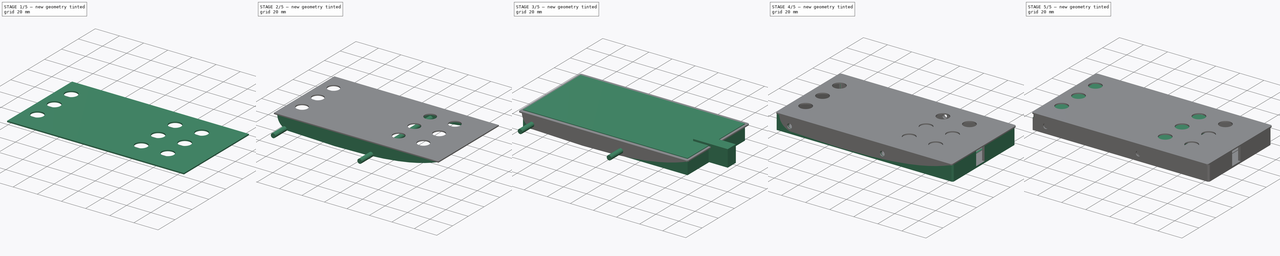
[diagram: build sequence overview — one tinted view per stage of 5, left to right]
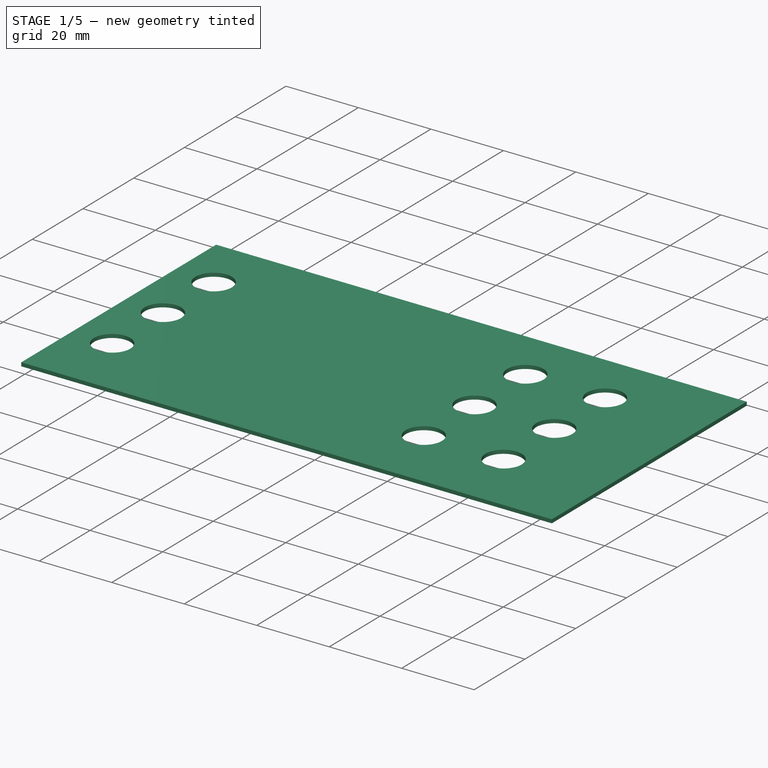
[diagram: stage 1 of 5 — iso view after this stage's code; geometry added in this stage tinted green]
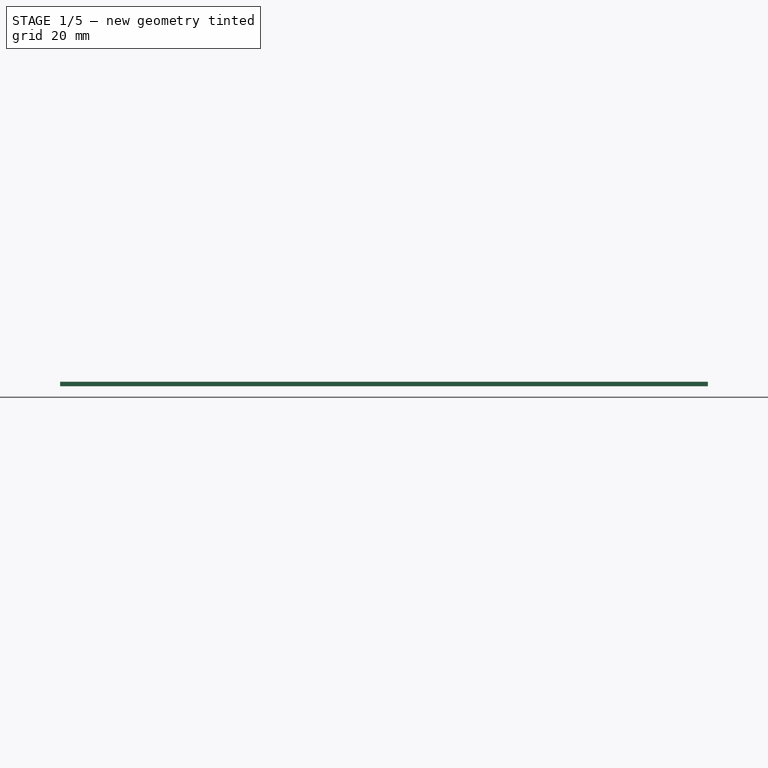
[diagram: stage 1 of 5 — front view after this stage's code; geometry added in this stage tinted green]
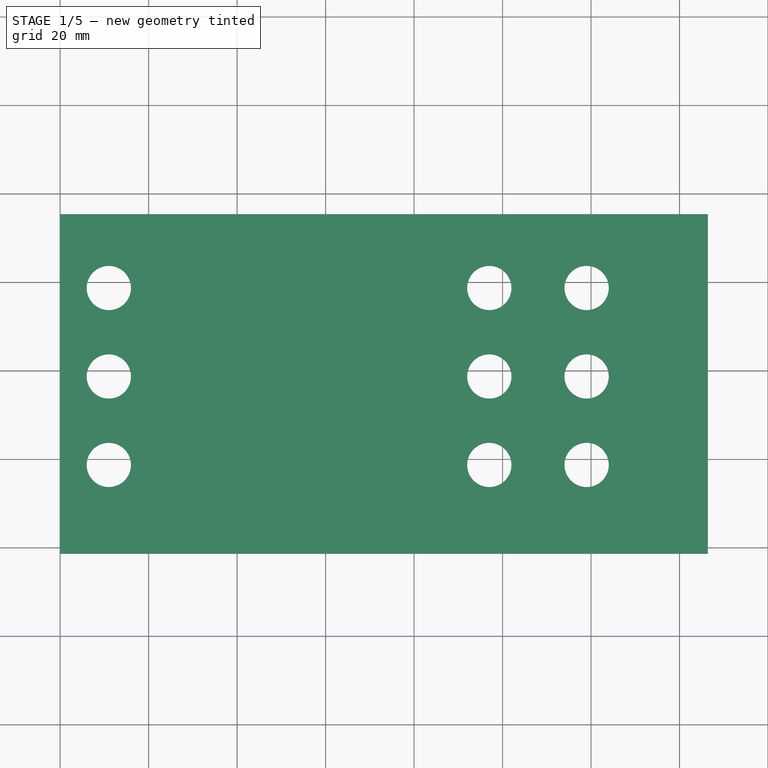
[diagram: stage 1 of 5 — top view after this stage's code; geometry added in this stage tinted green]
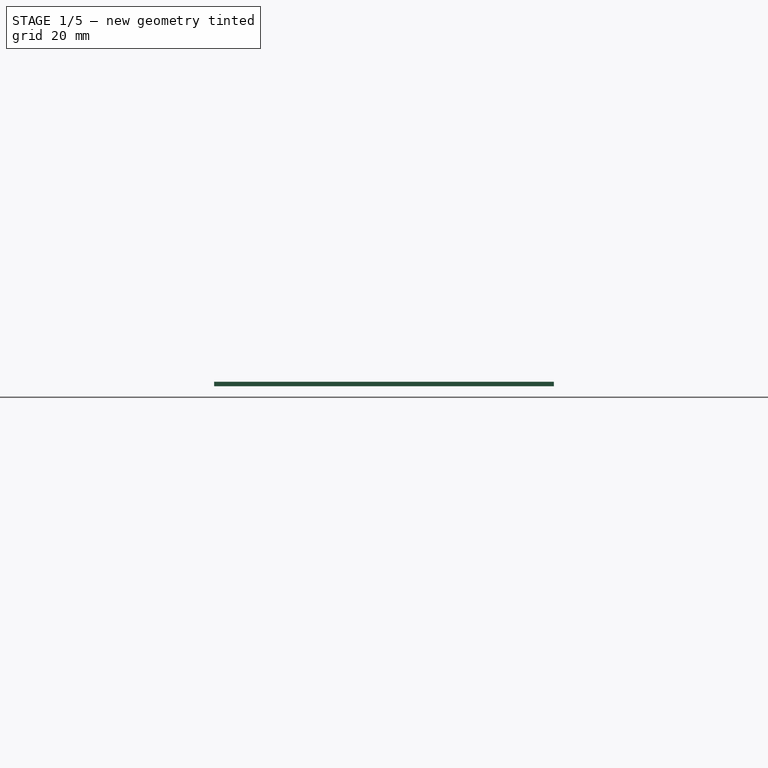
[diagram: stage 1 of 5 — right view after this stage's code; geometry added in this stage tinted green]
FCSTD DOCUMENT  (FreeCAD 0.18.4R)
Label: hdd2.5case_v
License: All rights reserved
LicenseURL: http://en.wikipedia.org/wiki/All_rights_reserved
objects: Part::Box×11, Part::FeaturePython×6, Part::Cut×5, PartDesign::Body×5, App::Part×4, PartDesign::FeatureBase×4, Part::MultiFuse×4, Part::Cylinder×2, Part::Fillet×2, Part::Compound×2, Spreadsheet::Sheet×1, Sketcher::SketchObject×1, PartDesign::Pad×1
note: 44 computed .brp shape members not serialized (recipe doc carries the construction recipe); baked Part::Feature solids carry a one-line shape summary decoded from their .brp

FEATURE [App::Part] Part  label="bottom part"
  Group = -> [Box,Box001,Cut,Box003,Array,Array001,Box006,Cut002,Body,Fusion,Box009,Box010,Fillet,Compound]
  Origin = -> Origin
FEATURE [Part::Box] Box011  label="Cube008"
  AttacherType = Attacher::AttachEngine3D
  Height = 1
  Length = 146.4
  Placement = pos=(0,-1.4,12.8) rot=(0,0,1;0rad)
  Width = 76.8
  expr: Placement.Base.y = -p.top_side_wall - p.wall_gap
  expr: Length = p.internal_length + 2 * p.x_wall + p.wall_gap
  expr: Width = p.internal_width + 2 * p.wall + 4 * p.wall_gap + 2 * p.top_side_wall
  expr: Placement.Base.z = p.internal_height + p.bottom_wall + 2 * p.wall_gap
  expr: Height = p.top_wall
FEATURE [Part::Cylinder] Cylinder001
  Angle = 360
  AttacherType = Attacher::AttachEngine3D
  Height = 10
  Placement = pos=(11,18.7,10) rot=(0,0,1;0rad)
  Radius = 5
FEATURE [Part::FeaturePython] Array005  label="vent hole array"  # Draft array (typed FeaturePython)
  Angle = 360
  ArrayType = 0
  Axis = (0,0,1)
  Base = -> Cylinder001
  Center = (0,0,0)
  Fuse = false
  IntervalAxis = (0,0,0)
  IntervalX = (1,0,0)
  IntervalY = (0,20,0)
  IntervalZ = (0,0,1)
  NumberPolar = 1
  NumberX = 1
  NumberY = 3
  NumberZ = 1
FEATURE [PartDesign::FeatureBase] Clone002
  BaseFeature = -> Array005
FEATURE [PartDesign::Body] Body003  label="vent hole array clone"
  BaseFeature = -> Array005
  Group = -> [Clone002]
  Origin = -> Origin007
  Placement = pos=(86,0,0) rot=(0,0,1;0rad)
  Tip = -> Clone002
FEATURE [PartDesign::FeatureBase] Clone003
  BaseFeature = -> Array005
FEATURE [PartDesign::Body] Body004  label="vent hole array clone001"
  BaseFeature = -> Array005
  Group = -> [Clone003]
  Origin = -> Origin008
  Placement = pos=(108,0,0) rot=(0,0,1;0rad)
  Tip = -> Clone003
FEATURE [Part::MultiFuse] Fusion003  label="vent hole fusion"
  Shapes = -> [Array005,Body003,Body004]
FEATURE [Part::Cut] Cut005  label="top with holes cut"
  Base = -> Box011
  Tool = -> Fusion003
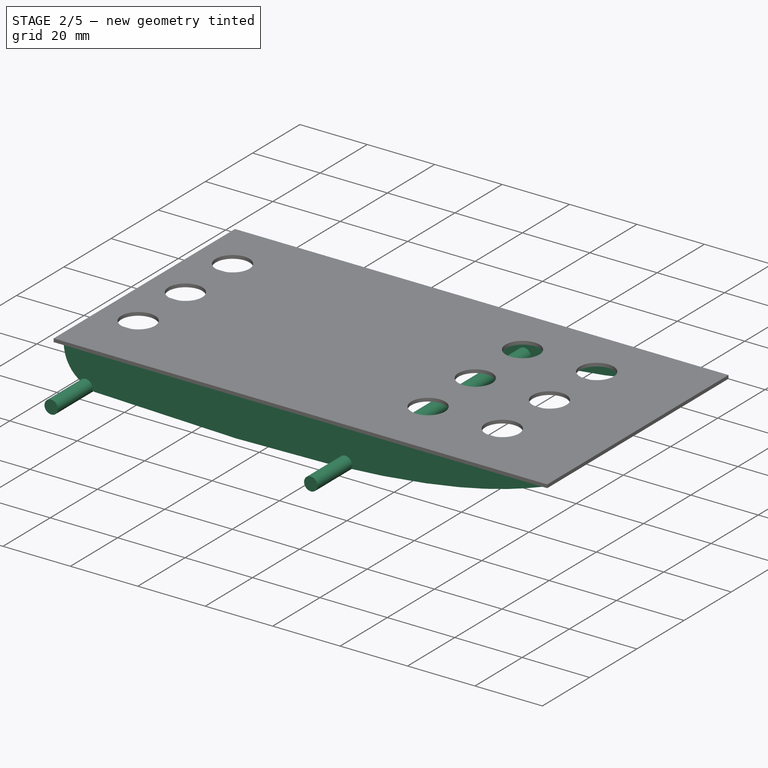
[diagram: stage 2 of 5 — iso view after this stage's code; geometry added in this stage tinted green]
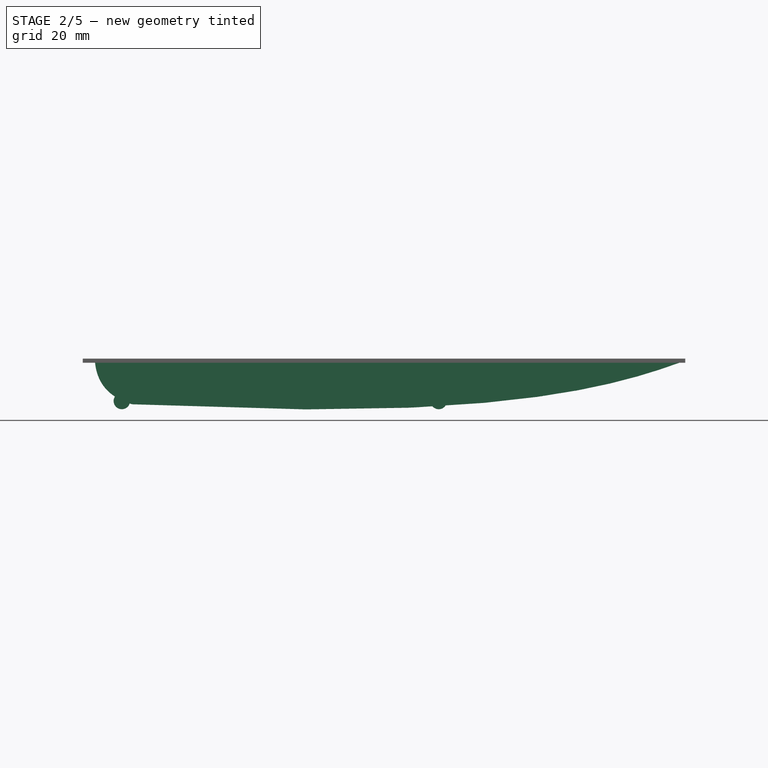
[diagram: stage 2 of 5 — front view after this stage's code; geometry added in this stage tinted green]
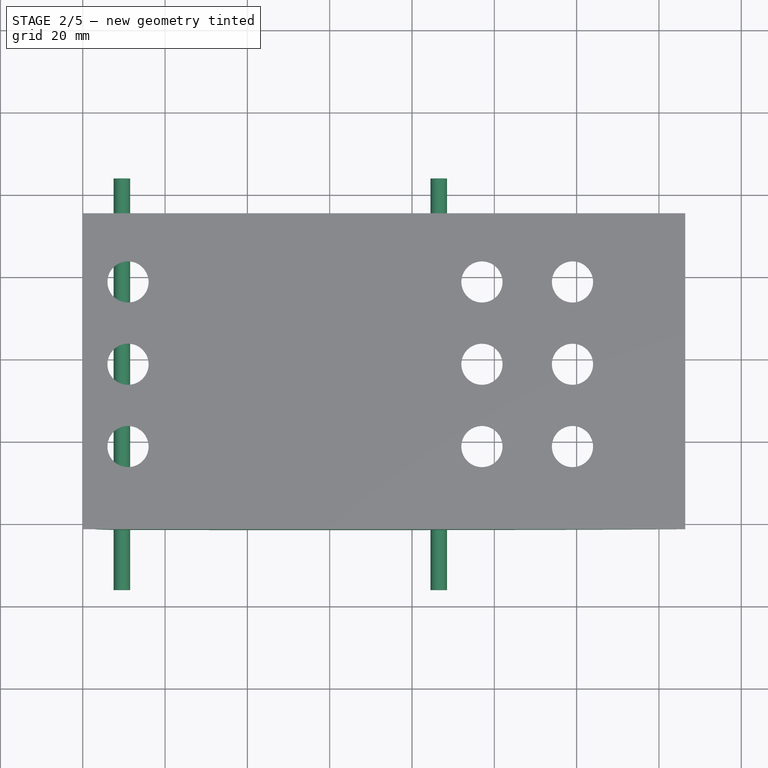
[diagram: stage 2 of 5 — top view after this stage's code; geometry added in this stage tinted green]
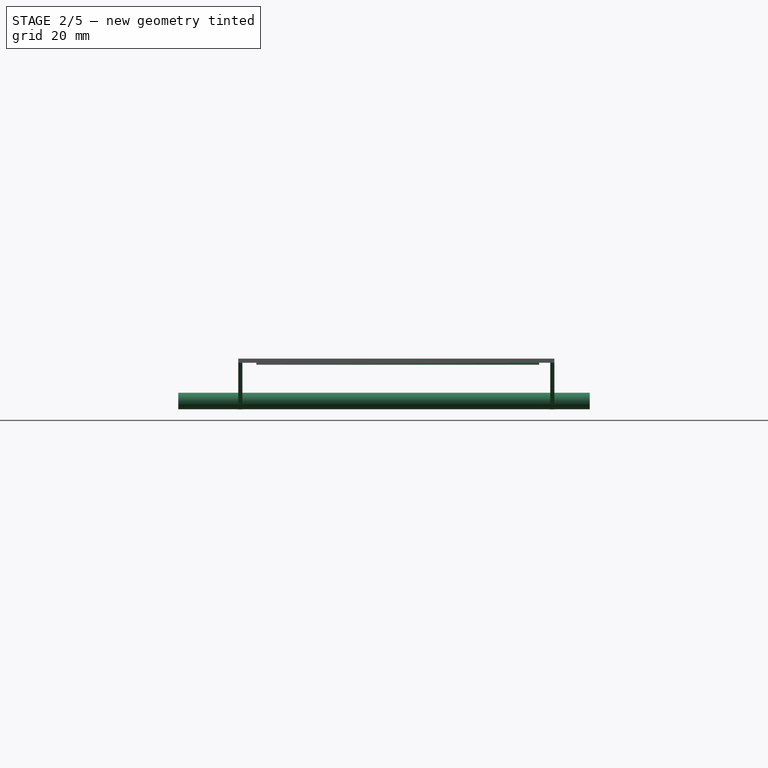
[diagram: stage 2 of 5 — right view after this stage's code; geometry added in this stage tinted green]
FEATURE [Part::Cylinder] Cylinder
  Angle = 360
  AttacherType = Attacher::AttachEngine3D
  Height = 100
  Placement = pos=(9.5,-16,3.5) rot=(-1,0,0;1.5708rad)
  Radius = 2
FEATURE [Part::FeaturePython] Array002  label="hdd side hole array"  # Draft array (typed FeaturePython)
  Angle = 360
  ArrayType = 0
  Axis = (0,0,1)
  Base = -> Cylinder
  Center = (0,0,0)
  Fuse = false
  IntervalAxis = (0,0,0)
  IntervalX = (77,0,0)
  IntervalY = (0,1,0)
  IntervalZ = (0,0,1)
  NumberPolar = 1
  NumberX = 2
  NumberY = 1
  NumberZ = 1
FEATURE [Sketcher::SketchObject] Sketch
  MapMode = 5
  Placement = pos=(0,0,0) rot=(1,0,0;1.5708rad)
  Support = -> [XZ_Plane005]
  expr: Constraints[13] = p.internal_height + 2 * p.wall_gap + p.bottom_wall
  expr: Constraints[12] = p.internal_length
  sketch-geometry (13):
    g0: Circle [constr] CenterX=3 CenterY=12.8 CenterZ=0 NormalX=0 NormalY=0 NormalZ=1 AngleXU=0 Radius=2
    g1: Circle [constr] CenterX=3.76168 CenterY=5.10635 CenterZ=0 NormalX=0 NormalY=0 NormalZ=1 AngleXU=0 Radius=2
    g2: Circle [constr] CenterX=12.0346 CenterY=2.69761 CenterZ=0 NormalX=0 NormalY=0 NormalZ=1 AngleXU=0 Radius=2
    g3: BSplineCurve PolesCount=3 KnotsCount=2 Degree=2 IsPeriodic=0
    g4: GeomPoint [constr] X=0 Y=17 Z=0
    g5: Circle [constr] CenterX=11.504 CenterY=2.92591 CenterZ=0 NormalX=0 NormalY=0 NormalZ=1 AngleXU=0 Radius=10
    g6: Circle [constr] CenterX=95.8102 CenterY=-0.187429 CenterZ=0 NormalX=0 NormalY=0 NormalZ=1 AngleXU=0 Radius=10
    g7: Circle [constr] CenterX=126.452 CenterY=3.82053 CenterZ=0 NormalX=0 NormalY=0 NormalZ=1 AngleXU=0 Radius=8.97947
    g8: Circle [constr] CenterX=147.683 CenterY=13.9742 CenterZ=0 NormalX=0 NormalY=0 NormalZ=1 AngleXU=0 Radius=10
    g9: BSplineCurve PolesCount=4 KnotsCount=2 Degree=3 IsPeriodic=0
    g10: GeomPoint [constr] X=11.504 Y=2.92591 Z=0
    g11: GeomPoint [constr] X=146.599 Y=17 Z=0
    g12: LineSegment StartX=145 StartY=12.8 StartZ=0 EndX=3 EndY=12.8 EndZ=0
  constraints (14):
    c: Radius(g0) = 2
    c: Equal(g0,g1)
    c: Equal(g0,g2)
    c: InternalAlignment(g0,g3)
    c: InternalAlignment(g1,g3)
    c: InternalAlignment(g2,g3)
    c: Tangent(g12,g7)
    c: Coincident(g9,g3)
    c: Coincident(g12,g3)
    c: Coincident(g9,g12)
    c: Horizontal(g12)
    c: DistanceX(g-1,g3) = 3
    c: DistanceX(g3,g9) = 142
    c: DistanceY(g-1,g3) = 12.8
FEATURE [PartDesign::Pad] Pad
  Length = 1
  Length2 = 100
  Placement = pos=(0,0,0) rot=(1,0,0;1.5708rad)
  Profile = -> Sketch
  Type = 0
  expr: Length = p.top_side_wall
FEATURE [PartDesign::Body] Body001  label="top side wall body"
  Group = -> [Sketch,Pad]
  Origin = -> Origin005
  Placement = pos=(0,-0.4,0) rot=(0,0,1;0rad)
  Tip = -> Pad
  expr: Placement.Base.y = -p.wall_gap
FEATURE [Part::FeaturePython] Array003  label="top side wall array"  # Draft array (typed FeaturePython)
  Angle = 360
  ArrayType = 0
  Axis = (0,0,1)
  Base = -> Body001
  Center = (0,0,0)
  Fuse = false
  IntervalAxis = (0,0,0)
  IntervalX = (1,0,0)
  IntervalY = (0,75.8,0)
  IntervalZ = (0,0,1)
  NumberPolar = 1
  NumberX = 1
  NumberY = 2
  NumberZ = 1
  expr: IntervalY.y = p.internal_width + 2 * p.wall + 4 * p.wall_gap + p.top_side_wall
FEATURE [PartDesign::FeatureBase] Clone001
  BaseFeature = -> Array002
FEATURE [Part::Box] Box012  label="top bone"
  AttacherType = Attacher::AttachEngine3D
  Height = 0.7
  Length = 1.5
  Placement = pos=(0,3,12.3) rot=(0,0,1;0rad)
  Width = 68.7
  expr: Placement.Base.y = 2 * p.wall
  expr: Placement.Base.z = p.bottom_wall + p.hdd_height + p.usb_low + 2 * p.wall_gap
  expr: Height = p.top_wall + p.internal_height - p.hdd_height - 2 * p.wall_gap - p.usb_low
  expr: Width = p.internal_width - p.wall
  expr: Length = p.wall
FEATURE [Part::FeaturePython] Array004  label="y_top_bones array"  # Draft array (typed FeaturePython)
  Angle = 360
  ArrayType = 0
  Axis = (0,0,1)
  Base = -> Box012
  Center = (0,0,0)
  Fuse = false
  IntervalAxis = (0,0,0)
  IntervalX = (30,0,0)
  IntervalY = (0,1,0)
  IntervalZ = (0,0,1)
  NumberPolar = 1
  NumberX = 5
  NumberY = 1
  NumberZ = 1
  Placement = pos=(20,0,0) rot=(0,0,1;0rad)
FEATURE [Part::MultiFuse] Fusion002
  Shapes = -> [Array004,Cut005]
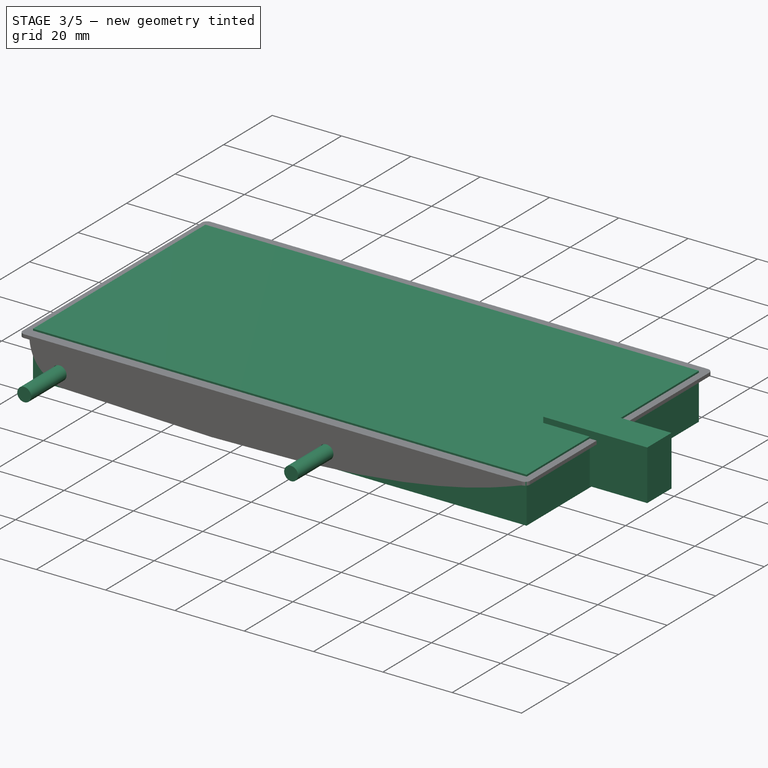
[diagram: stage 3 of 5 — iso view after this stage's code; geometry added in this stage tinted green]
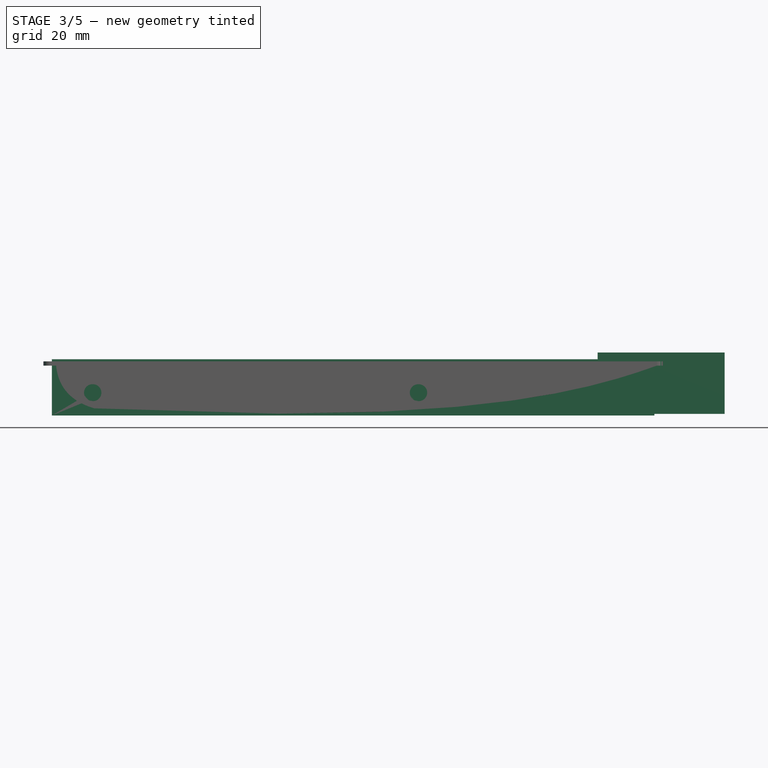
[diagram: stage 3 of 5 — front view after this stage's code; geometry added in this stage tinted green]
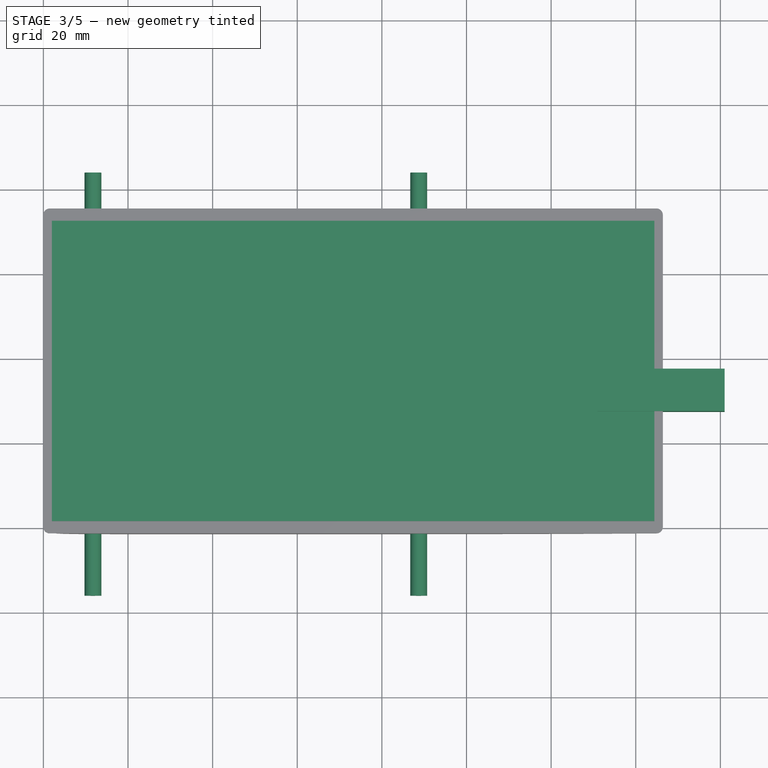
[diagram: stage 3 of 5 — top view after this stage's code; geometry added in this stage tinted green]
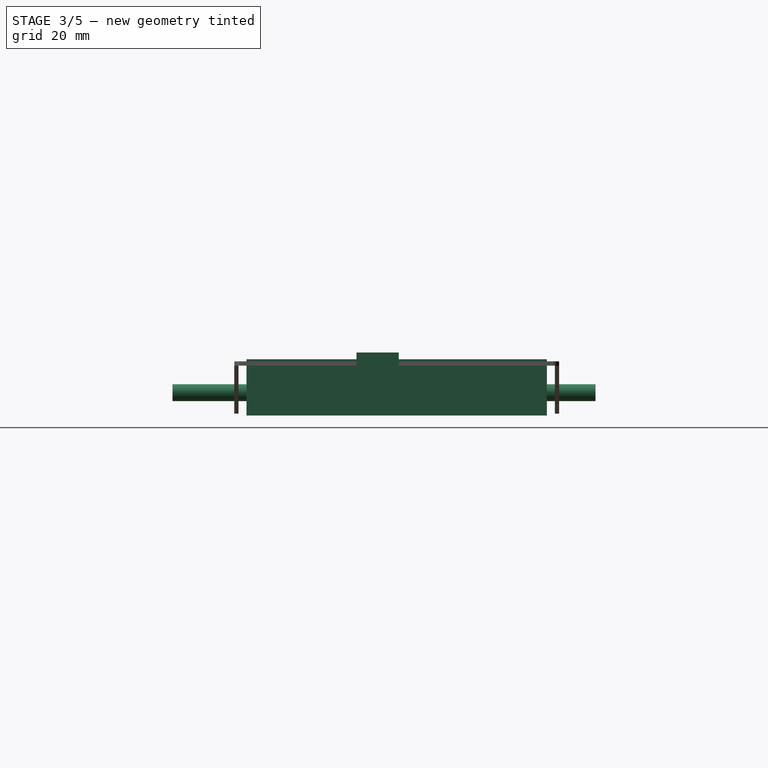
[diagram: stage 3 of 5 — right view after this stage's code; geometry added in this stage tinted green]
FEATURE [Spreadsheet::Sheet] Spreadsheet  label="p"
  cells = A1=hdd_length; B1(hdd_length)=100; A2=hdd_width; B2(hdd_width)=70.2; A3=x_wall; B3(x_wall)=2; A4=wall; B4(wall)=1.5; A5=bottom_wall; B5(bottom_wall)=1; A6=top_wall; B6(top_wall)==bottom_wall; A7=internal_length; B7(internal_length)==p.hdd_length + 42; A8=internal_width; B8(internal_width)==p.hdd_width; A9=hdd_height; B9(hdd_height)=9; A10=wall_gap; B10(wall_gap)=0.4; A11=vert_hole_dist; B11(vert_hole_dist)=3; A12=usb_low; B12(usb_low)=1.5; A13=usb_height; B13(usb_height)=9.5; A14=usb_length; B14(usb_length)=42; A15=usb_width; B15(usb_width)=52; A16=usb_hole_offset; B16(usb_hole_offset)=6; A17=usb_hole_width; B17(usb_hole_width)=10; A18=internal_height; B18(internal_height)=11; A19=top_side_wall; B19(top_side_wall)=1
FEATURE [Part::Box] Box001  label="Cube001"
  AttacherType = Attacher::AttachEngine3D
  Height = 13.3
  Length = 142.4
  Placement = pos=(2,1.5,1) rot=(0,0,1;0rad)
  Width = 71
  expr: Placement.Base.y = p.wall
  expr: Placement.Base.x = p.x_wall
  expr: Length = p.internal_length + p.wall_gap
  expr: Width = p.internal_width + 2 * p.wall_gap
  expr: Placement.Base.z = p.bottom_wall
  expr: Height = p.internal_height + p.wall + 2 * p.wall_gap
FEATURE [App::Part] Part001  label="hdd mockup part"
  Group = -> [Box004,Cylinder,Array002,Cut003]
  Origin = -> Origin001
  Placement = pos=(2.4,1.9,2.9) rot=(0,0,1;0rad)
  expr: Placement.Base.z = p.bottom_wall + p.wall_gap + p.usb_low
  expr: Placement.Base.y = p.wall + p.wall_gap
  expr: Placement.Base.x = p.x_wall + p.wall_gap
FEATURE [PartDesign::FeatureBase] Clone
  BaseFeature = -> Array002
FEATURE [App::Part] Part002  label="usb mockup part"
  Group = -> [Box007,Box008,Fusion001]
  Origin = -> Origin003
  Placement = pos=(103,6.4,1.4) rot=(0,0,1;0rad)
  expr: Placement.Base.y = p.wall + p.wall_gap + 4.5
  expr: Placement.Base.z = p.bottom_wall + p.wall_gap
FEATURE [Part::Box] Box009  label="usb extent hole"
  AttacherType = Attacher::AttachEngine3D
  Height = 14.5
  Length = 30
  Placement = pos=(131,27.5,1.4) rot=(0,0,1;0rad)
  Width = 10
  expr: Placement.Base.z = p.bottom_wall + p.wall_gap
  expr: Height = p.usb_height + 5
  expr: Width = p.usb_hole_width
FEATURE [Part::MultiFuse] Fusion  label="bottom body hole fusion"
  Shapes = -> [Box001,Body,Box009]
FEATURE [PartDesign::Body] Body002  label="hdd holes clone"
  BaseFeature = -> Array002
  Group = -> [Clone001]
  Origin = -> Origin006
  Placement = pos=(2.1,0,2.9) rot=(0,0,1;0rad)
  Tip = -> Clone001
  expr: Placement.Base.z = p.bottom_wall + p.wall_gap + 1.5
FEATURE [Part::Cut] Cut004  label="top side wall cut"
  Base = -> Array003
  Tool = -> Body002
FEATURE [Part::Compound] Compound001
  Links = -> [Cut004,Fusion002]
FEATURE [Part::Fillet] Fillet001  label="top part fillet"
  Base = -> Compound001
  Edges = 4 edges r=1.5: [Edge72,Edge74,Edge75,Edge77]
FEATURE [App::Part] Part003  label="top part"
  Group = -> [Box011,Body001,Array003,Body002,Cut004,Compound001,Fillet001,Box012,Array004,Fusion002,Cylinder001,Array005,Body003,Body004,Fusion003,Cut005]
  Origin = -> Origin004
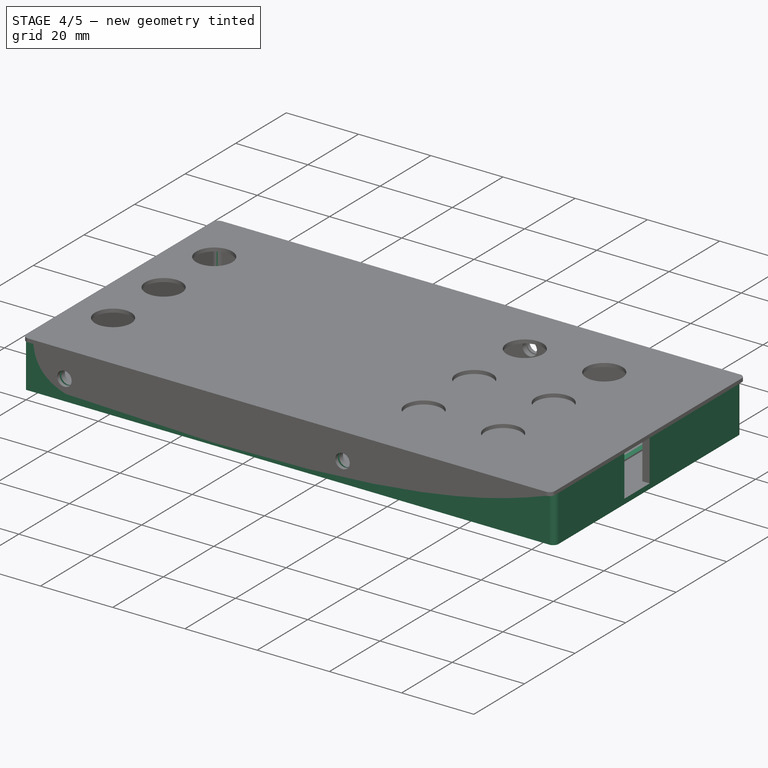
[diagram: stage 4 of 5 — iso view after this stage's code; geometry added in this stage tinted green]
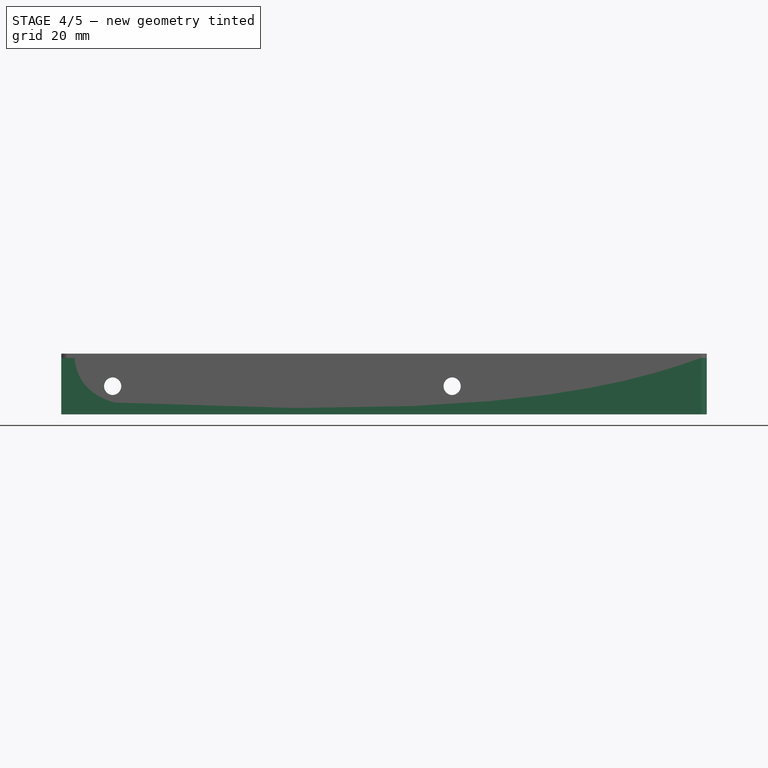
[diagram: stage 4 of 5 — front view after this stage's code; geometry added in this stage tinted green]
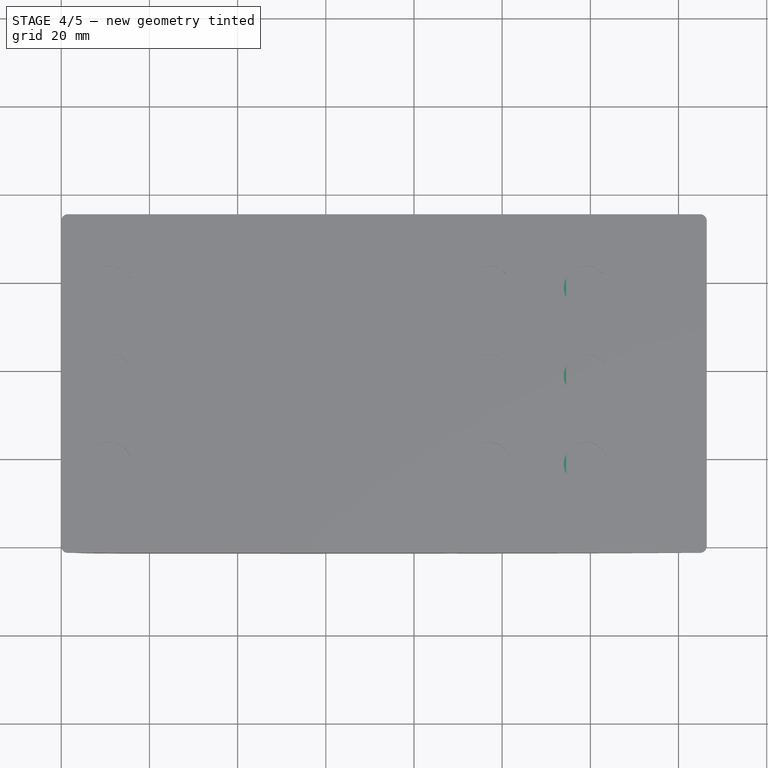
[diagram: stage 4 of 5 — top view after this stage's code; geometry added in this stage tinted green]
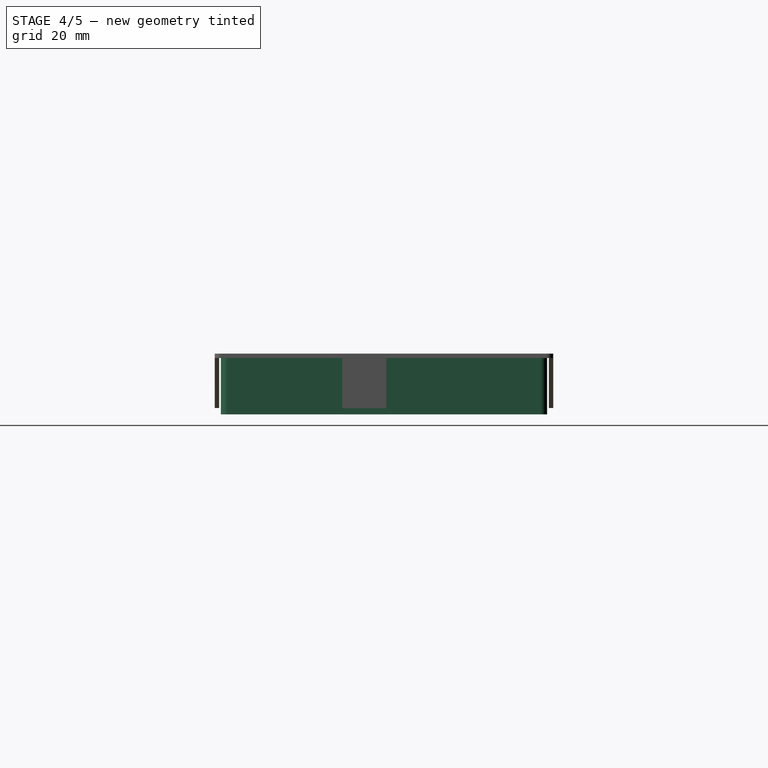
[diagram: stage 4 of 5 — right view after this stage's code; geometry added in this stage tinted green]
FEATURE [Part::Box] Box  label="Cube"
  AttacherType = Attacher::AttachEngine3D
  Height = 12.8
  Length = 146.4
  Width = 74
  expr: Length = p.internal_length + 2 * p.x_wall + p.wall_gap
  expr: Width = p.internal_width + 2 * p.wall + 2 * p.wall_gap
  expr: Height = p.internal_height + p.bottom_wall + 2 * p.wall_gap
FEATURE [Part::Box] Box003  label="Cube003"
  AttacherType = Attacher::AttachEngine3D
  Height = 12.8
  Length = 1.5
  Width = 74
  expr: Length = p.wall
  expr: Width = p.internal_width + 2 * p.wall + 2 * p.wall_gap
  expr: Height = p.internal_height + p.bottom_wall + 2 * p.wall_gap
FEATURE [Part::Box] Box006  label="Cube005"
  AttacherType = Attacher::AttachEngine3D
  Height = 12.8
  Length = 1.5
  Placement = pos=(0,1.9,2.9) rot=(0,0,1;0rad)
  Width = 70.2
  expr: Placement.Base.y = p.wall + p.wall_gap
  expr: Length = p.wall
  expr: Width = p.internal_width
  expr: Placement.Base.z = p.bottom_wall + p.wall_gap + p.usb_low
  expr: Height = p.internal_height + p.bottom_wall + 2 * p.wall_gap
FEATURE [Part::Cut] Cut002
  Base = -> Box003
  Tool = -> Box006
FEATURE [Part::Cut] Cut  label="outer body cut"
  Base = -> Box
  Tool = -> Fusion
FEATURE [Part::Box] Box010  label="Cube007"
  AttacherType = Attacher::AttachEngine3D
  Height = 1.4
  Length = 1.5
  Width = 74
  expr: Length = p.wall
  expr: Width = p.internal_width + 2 * p.wall + 2 * p.wall_gap
  expr: Height = p.bottom_wall + p.wall_gap
FEATURE [Part::FeaturePython] Array001  label="y_usb_bones array"  # Draft array (typed FeaturePython)
  Angle = 360
  ArrayType = 0
  Axis = (0,0,1)
  Base = -> Box010
  Center = (0,0,0)
  Fuse = false
  IntervalAxis = (0,0,0)
  IntervalX = (20,0,0)
  IntervalY = (0,1,0)
  IntervalZ = (0,0,1)
  NumberPolar = 1
  NumberX = 2
  NumberY = 1
  NumberZ = 1
  Placement = pos=(113,0,0) rot=(0,0,1;0rad)
FEATURE [Part::Fillet] Fillet  label="bottom fillet"
  Base = -> Cut
  Edges = 8 edges r=1.5: [Edge1,Edge3,Edge6,Edge21,Edge36,Edge38,Edge39,Edge43]
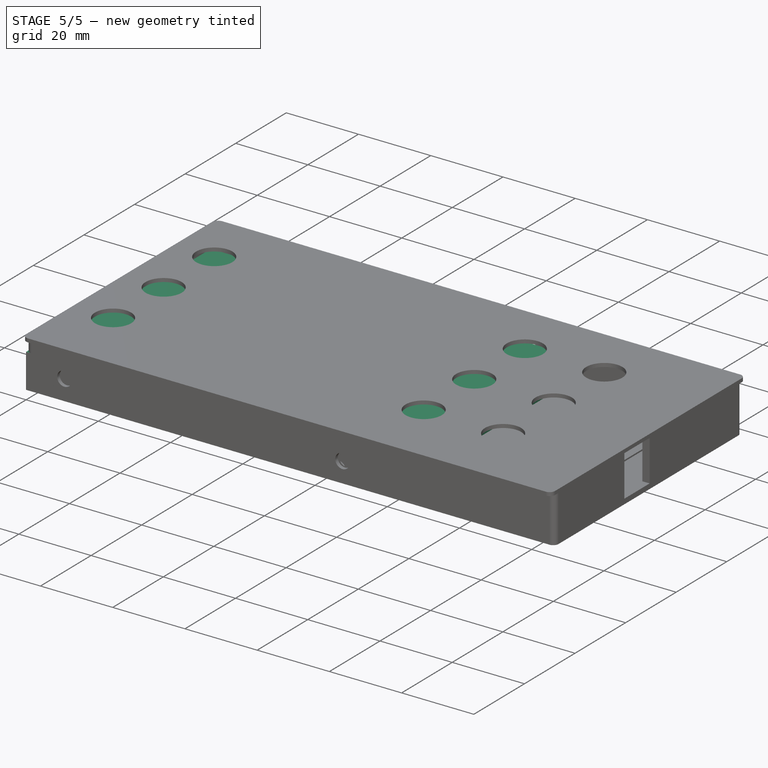
[diagram: stage 5 of 5 — iso view after this stage's code; geometry added in this stage tinted green]
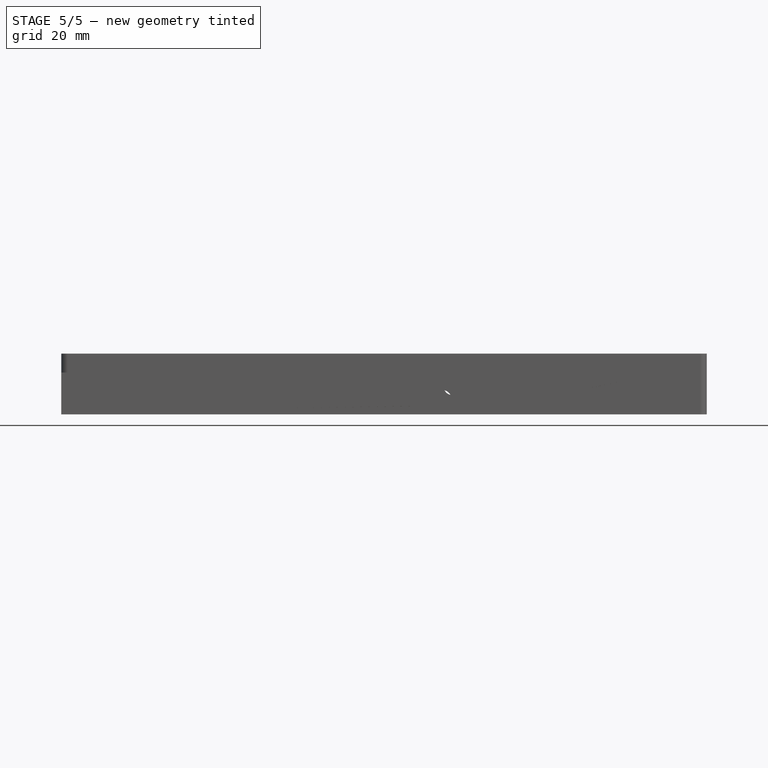
[diagram: stage 5 of 5 — front view after this stage's code; geometry added in this stage tinted green]
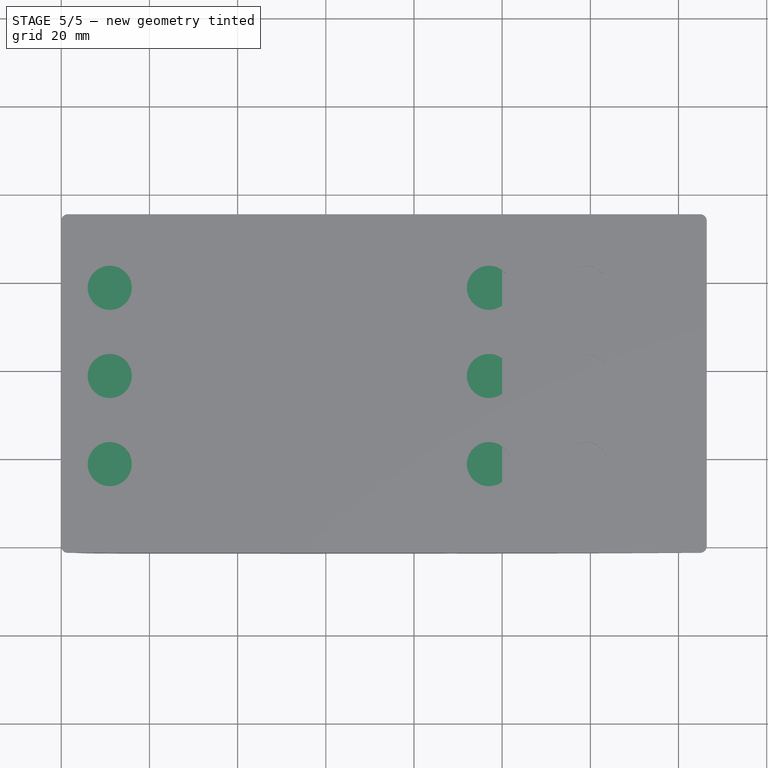
[diagram: stage 5 of 5 — top view after this stage's code; geometry added in this stage tinted green]
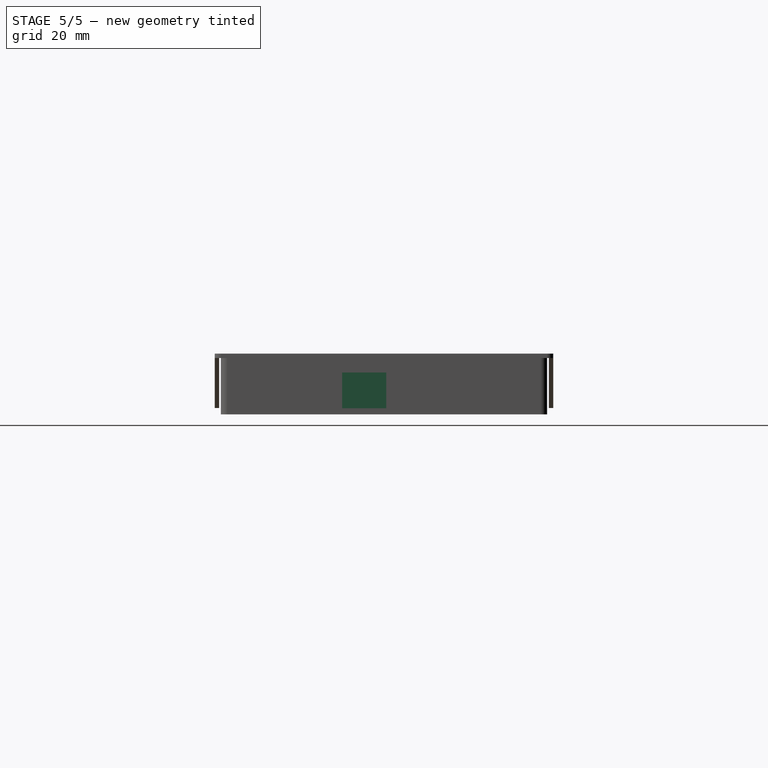
[diagram: stage 5 of 5 — right view after this stage's code; geometry added in this stage tinted green]
FEATURE [Part::Box] Box004  label="hdd mockup"
  AttacherType = Attacher::AttachEngine3D
  Height = 9
  Length = 100
  Width = 70.2
  expr: Height = p.hdd_height
  expr: Width = p.hdd_width
  expr: Length = p.hdd_length
FEATURE [Part::FeaturePython] Array  label="y_hdd_bones array"  # Draft array (typed FeaturePython)
  Angle = 360
  ArrayType = 0
  Axis = (0,0,1)
  Base = -> Cut002
  Center = (0,0,0)
  Fuse = false
  IntervalAxis = (0,0,0)
  IntervalX = (30,0,0)
  IntervalY = (0,1,0)
  IntervalZ = (0,0,1)
  NumberPolar = 1
  NumberX = 3
  NumberY = 1
  NumberZ = 1
  Placement = pos=(20,0,0) rot=(0,0,1;0rad)
FEATURE [Part::Cut] Cut003  label="hdd with holes cut"
  Base = -> Box004
  Tool = -> Array002
FEATURE [PartDesign::Body] Body  label="hdd side holes clone"
  BaseFeature = -> Array002
  Group = -> [Clone]
  Origin = -> Origin002
  Placement = pos=(2.2,0,2.9) rot=(0,0,1;0rad)
  Tip = -> Clone
  expr: Placement.Base.z = p.bottom_wall + p.wall_gap + 1.5
FEATURE [Part::Box] Box007  label="Cube006"
  AttacherType = Attacher::AttachEngine3D
  Height = 9.5
  Length = 42
  Width = 52
  expr: Height = p.usb_height
  expr: Width = p.usb_width
  expr: Length = p.usb_length
FEATURE [Part::Box] Box008  label="usb_extent"
  AttacherType = Attacher::AttachEngine3D
  Height = 9.5
  Length = 5
  Placement = pos=(42,21,0) rot=(0,0,1;0rad)
  Width = 10
  expr: Placement.Base.y = (p.usb_width - p.usb_hole_width) / 2
  expr: Height = p.usb_height
  expr: Width = p.usb_hole_width
FEATURE [Part::MultiFuse] Fusion001  label="usb_fusion"
  Shapes = -> [Box008,Box007]
FEATURE [Part::Compound] Compound  label="bottom compound"
  Links = -> [Array,Array001,Fillet]
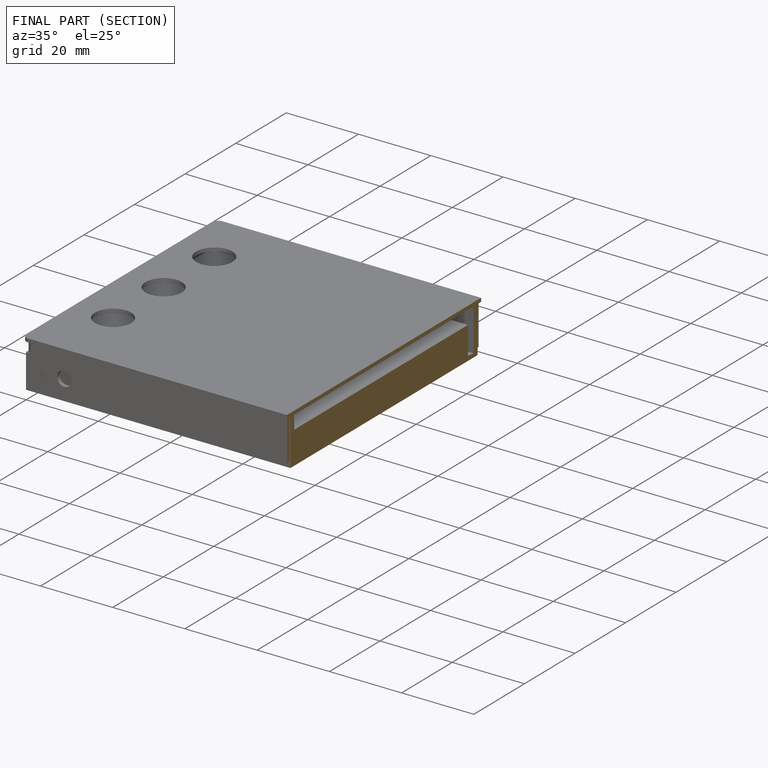
[diagram: finished part — half-section view (interior)]
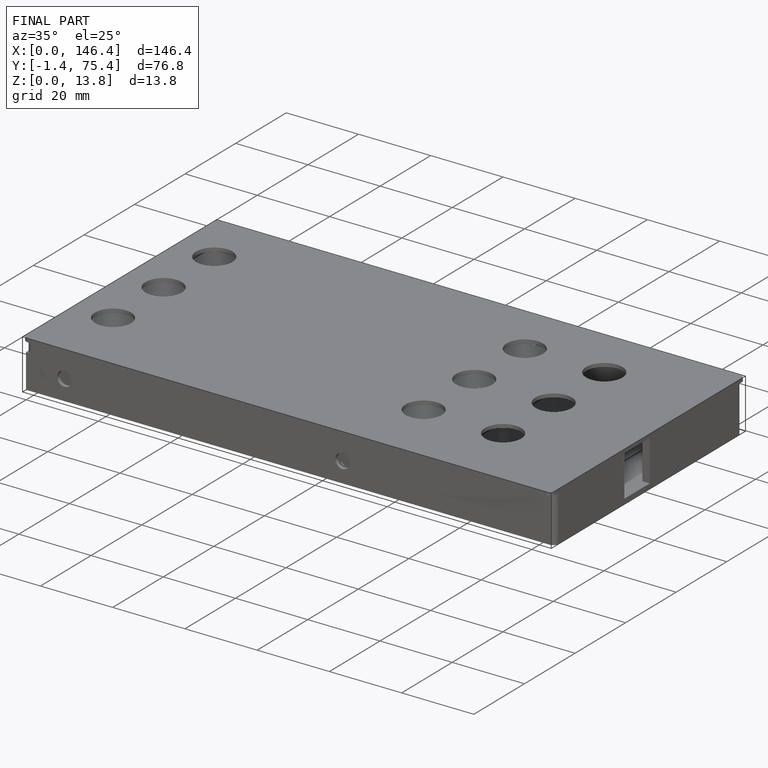
[diagram: finished part — iso view with bounding-box wireframe]
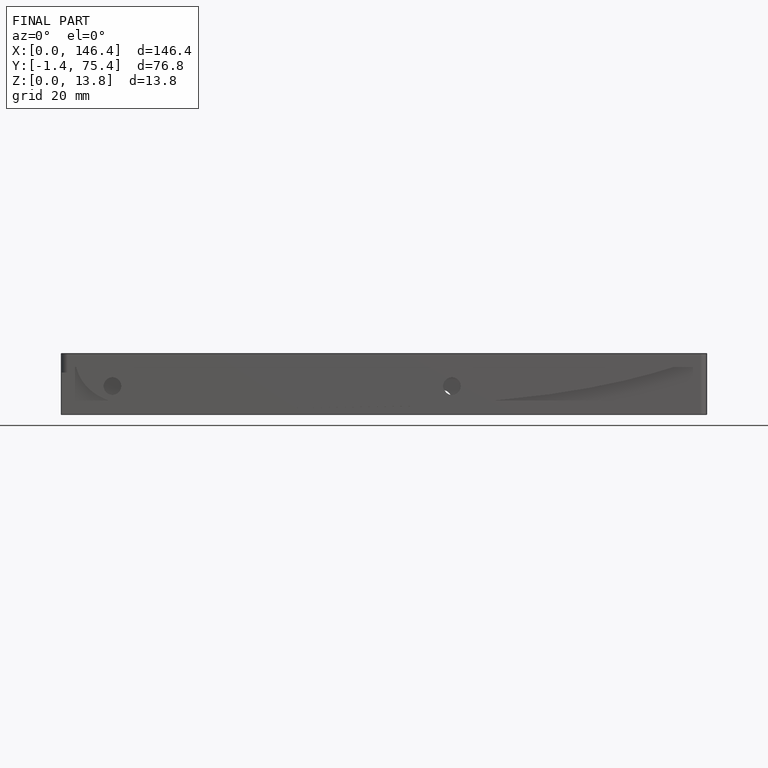
[diagram: finished part — front view with bounding-box wireframe]
